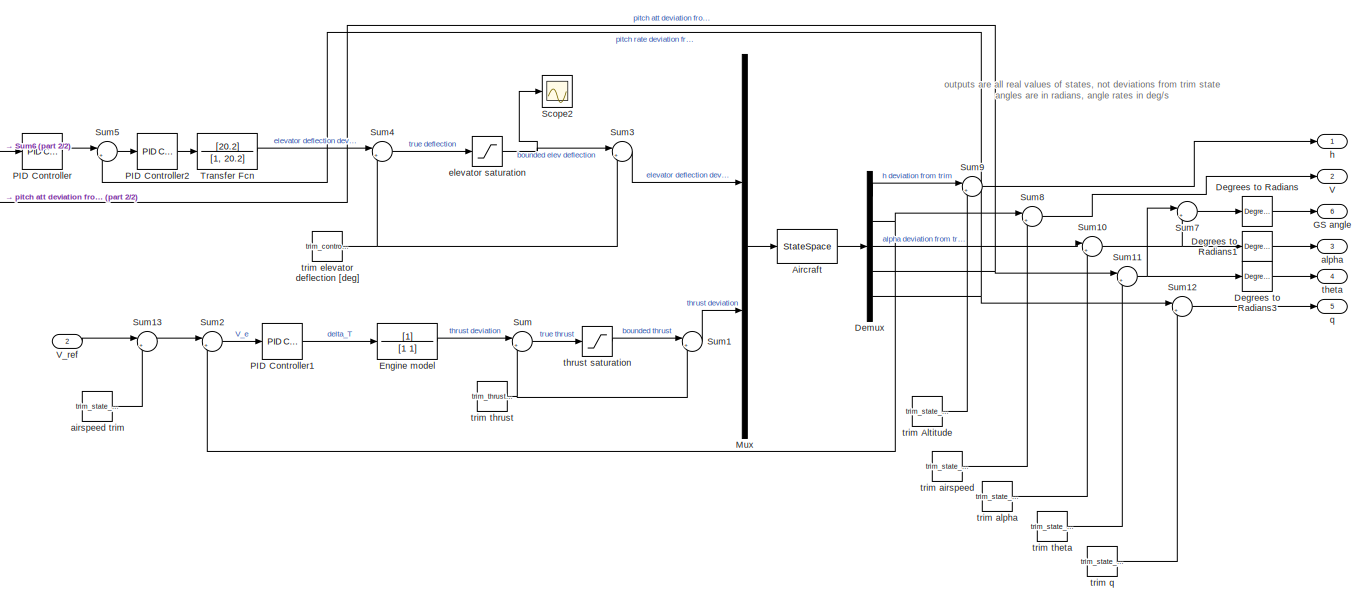
[diagram: root canvas - part 1/2, most of the canvas]
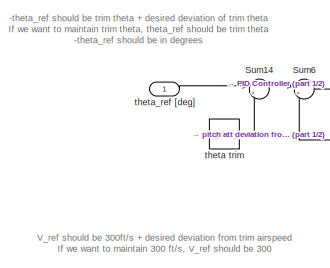
[diagram: root canvas - part 2/2, middle left region]
MODEL slx_cd5175ededcc
KIND model
CONFIG AbsTol = auto
CONFIG EnableMultiTasking = off
CONFIG FixedStep = auto
CONFIG MaxStep = auto
CONFIG MinStep = auto
CONFIG RelTol = 1e-3
CONFIG SampleTimeConstraint = Unconstrained
CONFIG SolverName = VariableStepAuto
CONFIG StartTime = 0.0
CONFIG StopTime = 1000
BLOCK [StateSpace] Aircraft
  A = ss_red.A
  B = ss_red.B
  C = ss_red.C
  D = ss_red.D
  InitialCondition = 0
  Ports = [1, 1]
BLOCK [Reference] Degrees to Radians  REF=simulink_extras/Transformations/Degrees to
Radians
  Ports = [1, 1]
  SourceBlock = simulink_extras/Transformations/Degrees to\nRadians
  SourceProductBaseCode = SL
  SourceType = DegreesToRadians
BLOCK [Reference] Degrees to Radians1  REF=simulink_extras/Transformations/Degrees to
Radians
  Ports = [1, 1]
  SourceBlock = simulink_extras/Transformations/Degrees to\nRadians
  SourceProductBaseCode = SL
  SourceType = DegreesToRadians
BLOCK [Reference] Degrees to Radians3  REF=simulink_extras/Transformations/Degrees to
Radians
  Ports = [1, 1]
  SourceBlock = simulink_extras/Transformations/Degrees to\nRadians
  SourceProductBaseCode = SL
  SourceType = DegreesToRadians
BLOCK [Demux] Demux
  Outputs = 5
  Ports = [1, 5]
BLOCK [TransferFcn] Engine model
  Denominator = [1 1]
BLOCK [Outport] GS angle
  Port = 6
BLOCK [Mux] Mux
  DisplayOption = bar
  Inputs = 2
  Ports = [2, 1]
BLOCK [Reference] PID Controller  REF=pid_lib/PID Controller
  Ports = [1, 1]
  SourceBlock = pid_lib/PID Controller
  SourceProductBaseCode = SL
  SourceType = PID 1dof
BLOCK [Reference] PID Controller1  REF=pid_lib/PID Controller
  Ports = [1, 1]
  SourceBlock = pid_lib/PID Controller
  SourceProductBaseCode = SL
  SourceType = PID 1dof
BLOCK [Reference] PID Controller2  REF=pid_lib/PID Controller
  Ports = [1, 1]
  SourceBlock = pid_lib/PID Controller
  SourceProductBaseCode = SL
  SourceType = PID 1dof
BLOCK [Scope] Scope2
  Floating = off
  NumInputPorts = 1
  Ports = [1]
  ScopeSpecificationString = Simulink.scopes.TimeScopeBlockCfg('CurrentConfiguration', extmgr.ConfigurationSet(extmgr.Configuration('Core','General UI',true),extmgr.Configuration('Core','Source UI',true),extmgr.Configuration('Sources','WiredSimulink',true,'DataLoggingVariableName','ScopeData3'),extmgr.Configuration('Visuals','Time Domain',true,'SerializedDisplays',{struct('MinYLimReal','-4.50401','MaxYLimReal','-2.77217','YLa...<+1439ch>
BLOCK [Sum] Sum
  Inputs = |++
  Ports = [2, 1]
BLOCK [Sum] Sum1
  Inputs = |+-
  Ports = [2, 1]
BLOCK [Sum] Sum10
  Inputs = |++
  Ports = [2, 1]
BLOCK [Sum] Sum11
  Inputs = |++
  Ports = [2, 1]
BLOCK [Sum] Sum12
  Inputs = |++
  Ports = [2, 1]
BLOCK [Sum] Sum13
  Inputs = |+-
  Ports = [2, 1]
BLOCK [Sum] Sum14
  Inputs = |+-
  Ports = [2, 1]
BLOCK [Sum] Sum2
  Inputs = |+-
  Ports = [2, 1]
BLOCK [Sum] Sum3
  Inputs = |+-
  Ports = [2, 1]
BLOCK [Sum] Sum4
  Inputs = |++
  Ports = [2, 1]
BLOCK [Sum] Sum5
  Inputs = |+-
  Ports = [2, 1]
BLOCK [Sum] Sum6
  Inputs = |+-
  Ports = [2, 1]
BLOCK [Sum] Sum7
  Inputs = |+-
  Ports = [2, 1]
BLOCK [Sum] Sum8
  Inputs = |++
  Ports = [2, 1]
BLOCK [Sum] Sum9
  Inputs = |++
  Ports = [2, 1]
BLOCK [TransferFcn] Transfer Fcn
  Denominator = [1, 20.2]
  Numerator = [20.2]
BLOCK [Outport] V
  Port = 2
BLOCK [Inport] V_ref
  Port = 2
BLOCK [Constant] airspeed trim
  Value = trim_state_lo(7)
BLOCK [Outport] alpha
  Port = 3
BLOCK [Saturate] elevator saturation
  LowerLimit = -25
  UpperLimit = 25
BLOCK [Outport] h
BLOCK [Outport] q
  Port = 5
BLOCK [Outport] theta
  Port = 4
BLOCK [Constant] theta trim
  Value = trim_state_lo(5)
BLOCK [Inport] theta_ref [deg]
BLOCK [Saturate] thrust saturation
  LowerLimit = 1000
  UpperLimit = 19000
BLOCK [Constant] trim Altitude
  Value = trim_state_lo(3)
BLOCK [Constant] trim airspeed
  Value = trim_state_lo(7)
BLOCK [Constant] trim alpha
  Value = trim_state_lo(8)
BLOCK [Constant] trim elevator deflection [deg]
  Value = trim_control_lo(1)
BLOCK [Constant] trim q
  Value = trim_state_lo(11)
BLOCK [Constant] trim theta
  Value = trim_state_lo(5)
BLOCK [Constant] trim thrust
  Value = trim_thrust_lo
ANNOTATION (root): -theta_ref should be trim theta + desired deviation of trim theta If we want to maintain trim theta, theta_ref should be trim theta -theta_ref should be in degrees
ANNOTATION (root): V_ref should be 300ft/s + desired deviation from trim airspeed If we want to maintain 300 ft/s, V_ref should be 300
ANNOTATION (root): outputs are all real values of states, not deviations from trim state angles are in radians, angle rates in deg/s
LINE Aircraft:1 -> Demux:1
LINE Degrees to Radians1:1 -> alpha:1
LINE Degrees to Radians3:1 -> theta:1
LINE Degrees to Radians:1 -> GS angle:1
LINE Demux:1 -> Sum9:1
NET Demux:2 -> Sum2:2, Sum8:1
LINE Demux:3 -> Sum10:1
NET Demux:4 -> Sum11:1, Sum6:2
NET Demux:5 -> Sum12:1, Sum5:2
LINE Engine model:1 -> Sum:1
LINE Mux:1 -> Aircraft:1
LINE PID Controller1:1 -> Engine model:1
LINE PID Controller2:1 -> Transfer Fcn:1
LINE PID Controller:1 -> Sum5:1
NET Sum10:1 -> Degrees to Radians1:1, Sum7:2
NET Sum11:1 -> Degrees to Radians3:1, Sum7:1
LINE Sum12:1 -> q:1
LINE Sum13:1 -> Sum2:1
LINE Sum14:1 -> Sum6:1
LINE Sum1:1 -> Mux:2
LINE Sum2:1 -> PID Controller1:1
LINE Sum3:1 -> Mux:1
LINE Sum4:1 -> elevator saturation:1
LINE Sum5:1 -> PID Controller2:1
LINE Sum6:1 -> PID Controller:1
LINE Sum7:1 -> Degrees to Radians:1
LINE Sum8:1 -> V:1
LINE Sum9:1 -> h:1
LINE Sum:1 -> thrust saturation:1
LINE Transfer Fcn:1 -> Sum4:1
LINE V_ref:1 -> Sum13:1
LINE airspeed trim:1 -> Sum13:2
NET elevator saturation:1 -> Scope2:1, Sum3:1
LINE theta trim:1 -> Sum14:2
LINE theta_ref [deg]:1 -> Sum14:1
LINE thrust saturation:1 -> Sum1:1
LINE trim Altitude:1 -> Sum9:2
LINE trim airspeed:1 -> Sum8:2
LINE trim alpha:1 -> Sum10:2
NET trim elevator deflection [deg]:1 -> Sum3:2, Sum4:2
LINE trim q:1 -> Sum12:2
LINE trim theta:1 -> Sum11:2
NET trim thrust:1 -> Sum1:2, Sum:2
note: NET lines group one-source signal fan-out (src -> all destinations, sorted); 1:1 wires keep LINE
